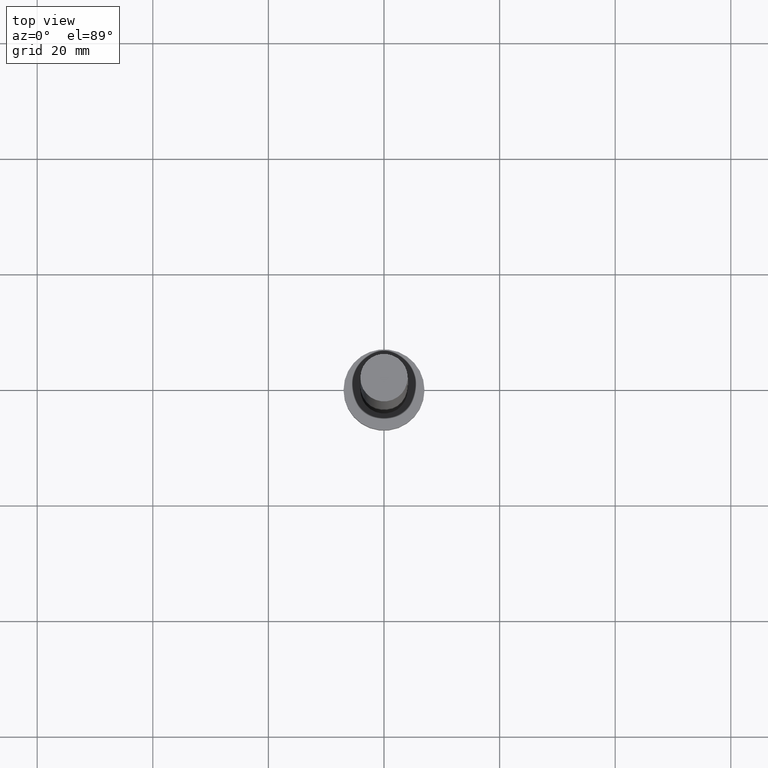
[diagram: clean part render]
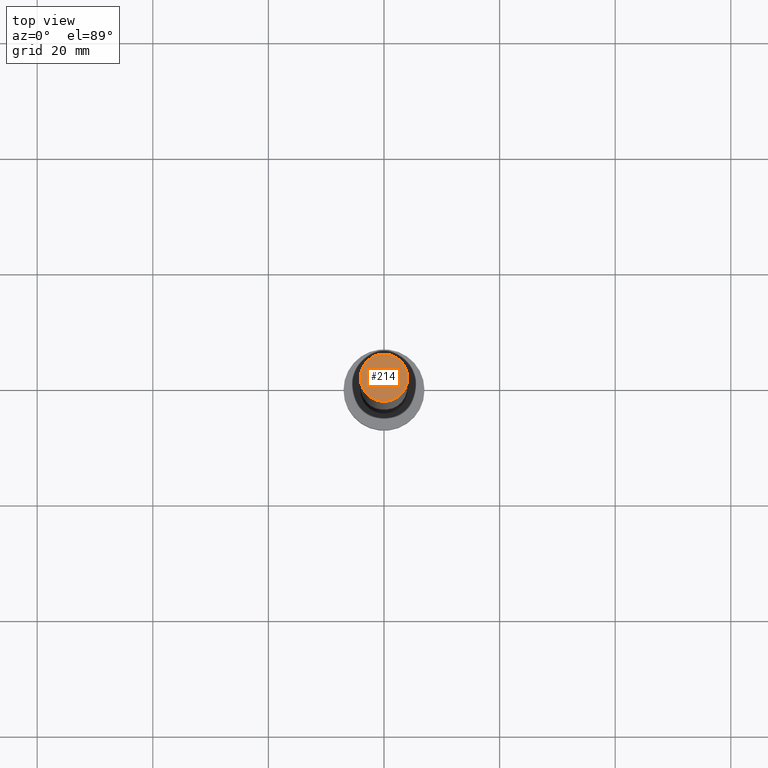
[diagram: same view with one face highlighted and labeled with its STEP entity id]
A machine part, top view. The second image highlights one B-rep face of the part: STEP entity #214.
In plain terms, the highlighted planar face has unit normal (0, 0, 1).
Its self-contained STEP definition (entity closure, byte-faithful):
#2 = CARTESIAN_POINT ( 'NONE',  ( 4.099999999999999645, 5.021051876504147385E-16, 125.0000000000000000 ) ) ;
#21 = ORIENTED_EDGE ( 'NONE', *, *, #230, .T. ) ;
#24 = CIRCLE ( 'NONE', #155, 4.099999999999999645 ) ;
#43 = DIRECTION ( 'NONE',  ( 1.000000000000000000, 0.000000000000000000, -0.000000000000000000 ) ) ;
#63 = CARTESIAN_POINT ( 'NONE',  ( 0.000000000000000000, 0.000000000000000000, 125.0000000000000000 ) ) ;
#67 = AXIS2_PLACEMENT_3D ( 'NONE', #239, #82, #43 ) ;
#82 = DIRECTION ( 'NONE',  ( 0.000000000000000000, 0.000000000000000000, 1.000000000000000000 ) ) ;
#92 = VERTEX_POINT ( 'NONE', #2 ) ;
#105 = EDGE_CURVE ( 'NONE', #177, #92, #142, .T. ) ;
#109 = DIRECTION ( 'NONE',  ( 1.000000000000000000, 0.000000000000000000, 0.000000000000000000 ) ) ;
#142 = CIRCLE ( 'NONE', #149, 4.099999999999999645 ) ;
#145 = DIRECTION ( 'NONE',  ( 0.000000000000000000, 0.000000000000000000, 1.000000000000000000 ) ) ;
#149 = AXIS2_PLACEMENT_3D ( 'NONE', #238, #219, #109 ) ;
#151 = EDGE_LOOP ( 'NONE', ( #193, #21 ) ) ;
#155 = AXIS2_PLACEMENT_3D ( 'NONE', #63, #145, #216 ) ;
#177 = VERTEX_POINT ( 'NONE', #235 ) ;
#193 = ORIENTED_EDGE ( 'NONE', *, *, #105, .T. ) ;
#214 = ADVANCED_FACE ( 'NONE', ( #222 ), #240, .T. ) ;
#216 = DIRECTION ( 'NONE',  ( 1.000000000000000000, 0.000000000000000000, 0.000000000000000000 ) ) ;
#219 = DIRECTION ( 'NONE',  ( 0.000000000000000000, 0.000000000000000000, 1.000000000000000000 ) ) ;
#222 = FACE_OUTER_BOUND ( 'NONE', #151, .T. ) ;
#230 = EDGE_CURVE ( 'NONE', #92, #177, #24, .T. ) ;
#235 = CARTESIAN_POINT ( 'NONE',  ( -4.099999999999999645, 0.000000000000000000, 125.0000000000000000 ) ) ;
#238 = CARTESIAN_POINT ( 'NONE',  ( 0.000000000000000000, 0.000000000000000000, 125.0000000000000000 ) ) ;
#239 = CARTESIAN_POINT ( 'NONE',  ( 0.000000000000000000, 0.000000000000000000, 125.0000000000000000 ) ) ;
#240 = PLANE ( 'NONE',  #67 ) ;